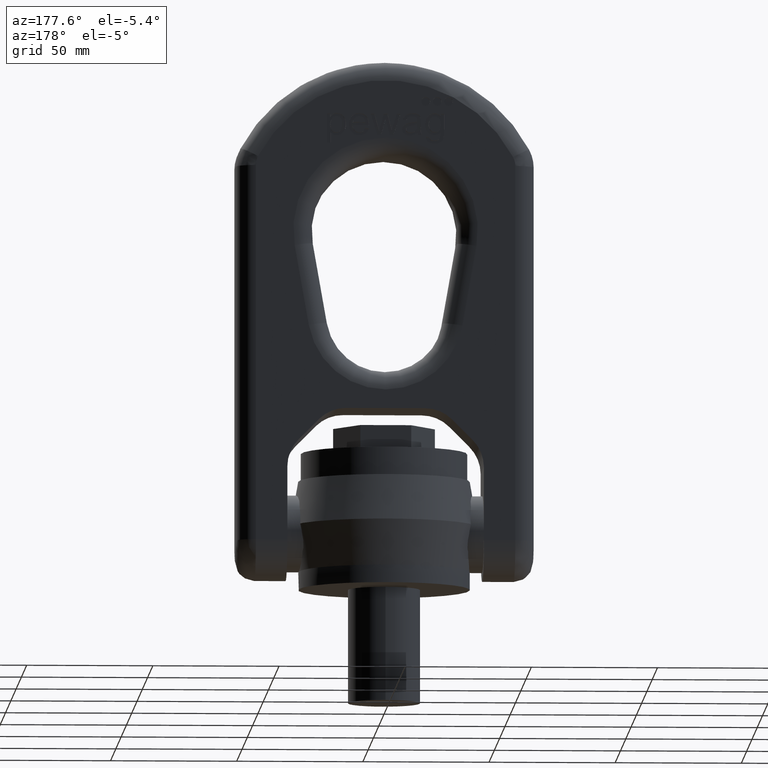
[diagram: clean part render]
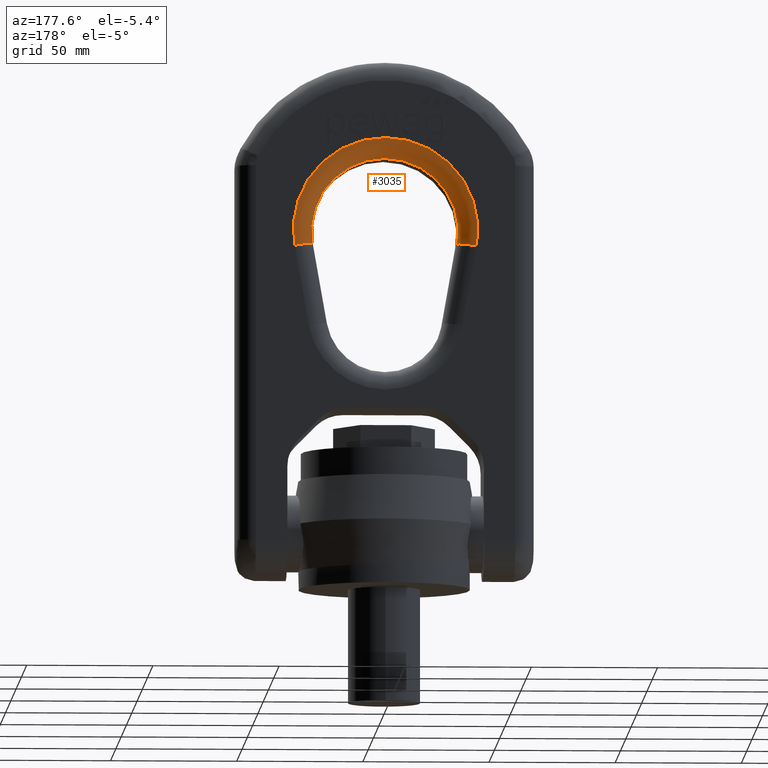
[diagram: same view with one face highlighted and labeled with its STEP entity id]
A machine part, auxiliary view. The second image highlights one B-rep face of the part: STEP entity #3035.
In plain terms, the highlighted toroidal blend (fillet) surface has major radius 36.6 mm and minor (blend) radius 7.6 mm.
Its self-contained STEP definition (entity closure, byte-faithful):
#204=TOROIDAL_SURFACE('',#6055,36.6,7.6);
#2660=FACE_OUTER_BOUND('',#3428,.T.);
#3035=ADVANCED_FACE('',(#2660),#204,.T.);
#3428=EDGE_LOOP('',(#4677,#4678,#4679,#4680));
#4677=ORIENTED_EDGE('',*,*,#5743,.T.);
#4678=ORIENTED_EDGE('',*,*,#5354,.F.);
#4679=ORIENTED_EDGE('',*,*,#5744,.T.);
#4680=ORIENTED_EDGE('',*,*,#5264,.F.);
#4828=VERTEX_POINT('',#7397);
#4829=VERTEX_POINT('',#7399);
#4913=VERTEX_POINT('',#7725);
#4915=VERTEX_POINT('',#7731);
#5264=EDGE_CURVE('',#4828,#4829,#5775,.T.);
#5354=EDGE_CURVE('',#4913,#4915,#5787,.T.);
#5743=EDGE_CURVE('',#4828,#4915,#5821,.T.);
#5744=EDGE_CURVE('',#4913,#4829,#5822,.T.);
#5775=CIRCLE('',#5882,36.6);
#5787=CIRCLE('',#5896,29.);
#5821=CIRCLE('',#6051,7.6);
#5822=CIRCLE('',#6053,7.6);
#5882=AXIS2_PLACEMENT_3D('',#7398,#6261,#6262);
#5896=AXIS2_PLACEMENT_3D('',#7730,#6333,#6334);
#6051=AXIS2_PLACEMENT_3D('',#9832,#6910,#6911);
#6053=AXIS2_PLACEMENT_3D('',#9834,#6914,#6915);
#6055=AXIS2_PLACEMENT_3D('',#9836,#6918,#6919);
#6261=DIRECTION('',(-2.34291072916505E-15,-1.,0.));
#6262=DIRECTION('',(-1.,2.32244399789245E-15,0.));
#6333=DIRECTION('',(2.34291072916505E-15,1.,0.));
#6334=DIRECTION('',(-1.,2.33290398493433E-15,0.));
#6910=DIRECTION('',(0.173648177666931,-4.75628795304343E-16,0.984807753012208));
#6911=DIRECTION('',(0.984807753012208,0.,-0.173648177666932));
#6914=DIRECTION('',(-0.173648177666931,3.17085863536229E-16,0.984807753012208));
#6915=DIRECTION('',(0.984807753012208,0.,0.173648177666932));
#6918=DIRECTION('',(2.34291072916505E-15,1.,0.));
#6919=DIRECTION('',(-1.,2.33520467919955E-15,0.));
#7397=CARTESIAN_POINT('',(36.0439637602469,15.1999999999999,135.64447669739));
#7398=CARTESIAN_POINT('',(1.78061215416544E-14,15.2,142.));
#7399=CARTESIAN_POINT('',(-36.0439637602468,15.2000000000001,135.64447669739));
#7725=CARTESIAN_POINT('',(-28.5594248373541,7.60000000000009,136.964202847659));
#7730=CARTESIAN_POINT('',(0.,7.59999999999998,142.));
#7731=CARTESIAN_POINT('',(28.5594248373541,7.59999999999992,136.964202847659));
#9832=CARTESIAN_POINT('',(36.0439637602468,7.59999999999992,135.64447669739));
#9834=CARTESIAN_POINT('',(-36.0439637602468,7.60000000000008,135.64447669739));
#9836=CARTESIAN_POINT('',(0.,7.6,142.));